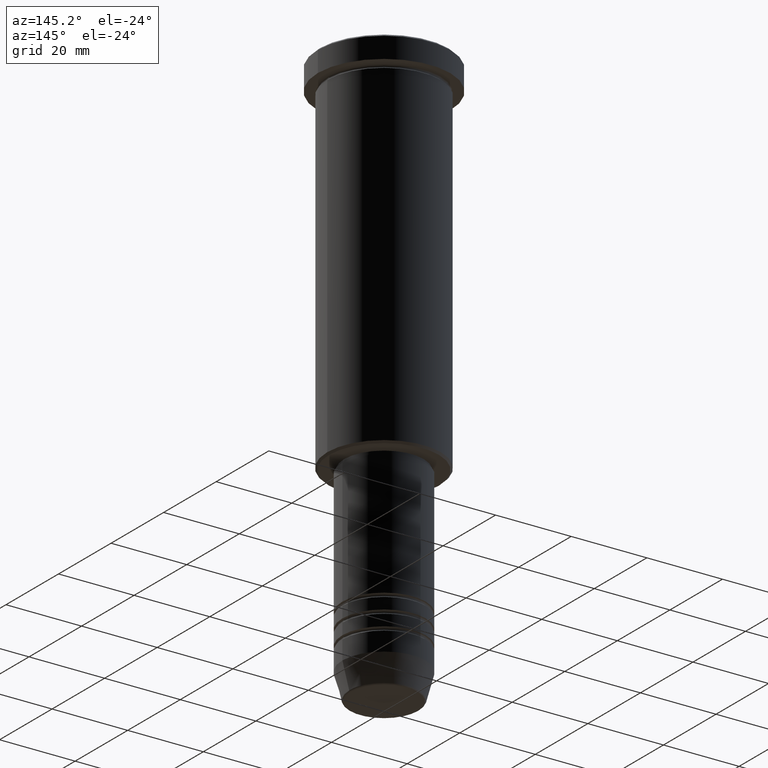
[diagram: clean part render]
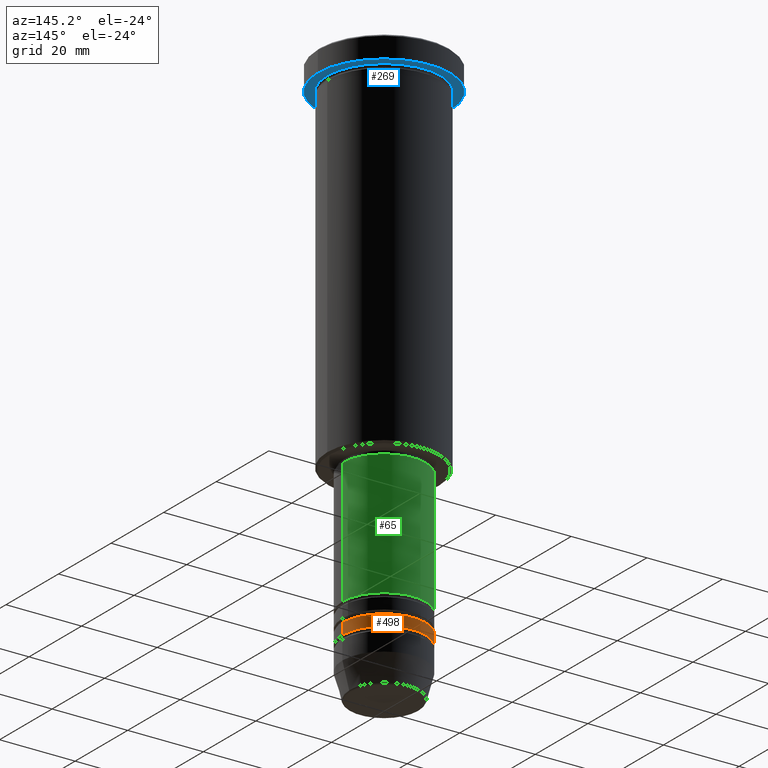
[diagram: same view with three faces highlighted in distinct colors, each labeled with its STEP entity id]
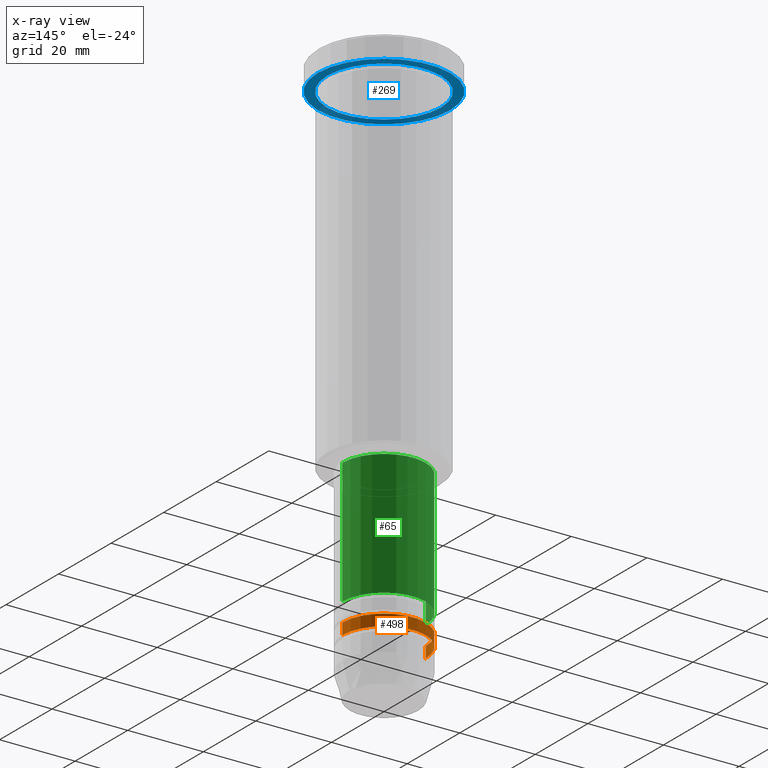
[diagram: x-ray of the same camera — body ghosted, the three highlighted faces saturated]
A machine part, auxiliary view with three faces highlighted in distinct colors.
The next image is the same camera in x-ray (body ghosted, the three faces saturated) — at least one of them is partly hidden behind the body in this view.
Their STEP definitions:

[orange] entity #498 — the highlighted cylindrical surface (partial cylindrical patch) has radius 11 mm, axis along (-0, -0, 1).
#5 = CARTESIAN_POINT ( 'NONE',  ( 0.000000000000000000, 0.000000000000000000, -137.9999999999998863 ) ) ;
#6 = DIRECTION ( 'NONE',  ( -0.000000000000000000, -0.000000000000000000, 1.000000000000000000 ) ) ;
#17 = DIRECTION ( 'NONE',  ( -0.000000000000000000, -0.000000000000000000, 1.000000000000000000 ) ) ;
#20 = LINE ( 'NONE', #281, #93 ) ;
#46 = EDGE_CURVE ( 'NONE', #70, #321, #1047, .T. ) ;
#70 = VERTEX_POINT ( 'NONE', #657 ) ;
#73 = AXIS2_PLACEMENT_3D ( 'NONE', #5, #849, #185 ) ;
#93 = VECTOR ( 'NONE', #6, 1000.000000000000000 ) ;
#106 = CARTESIAN_POINT ( 'NONE',  ( -11.00000000000000000, 1.347111479062088405E-15, -134.9999999999998863 ) ) ;
#132 = EDGE_CURVE ( 'NONE', #458, #467, #501, .T. ) ;
#147 = EDGE_CURVE ( 'NONE', #321, #467, #1135, .T. ) ;
#185 = DIRECTION ( 'NONE',  ( 1.000000000000000000, 0.000000000000000000, 0.000000000000000000 ) ) ;
#281 = CARTESIAN_POINT ( 'NONE',  ( 11.00000000000000000, 0.000000000000000000, 0.000000000000000000 ) ) ;
#309 = EDGE_LOOP ( 'NONE', ( #1063, #1072, #1061, #320 ) ) ;
#320 = ORIENTED_EDGE ( 'NONE', *, *, #341, .F. ) ;
#321 = VERTEX_POINT ( 'NONE', #1178 ) ;
#334 = AXIS2_PLACEMENT_3D ( 'NONE', #939, #17, #651 ) ;
#341 = EDGE_CURVE ( 'NONE', #70, #458, #20, .T. ) ;
#458 = VERTEX_POINT ( 'NONE', #572 ) ;
#467 = VERTEX_POINT ( 'NONE', #106 ) ;
#480 = FACE_OUTER_BOUND ( 'NONE', #309, .T. ) ;
#498 = ADVANCED_FACE ( 'NONE', ( #480 ), #751, .T. ) ;
#501 = CIRCLE ( 'NONE', #1131, 11.00000000000000000 ) ;
#509 = DIRECTION ( 'NONE',  ( 1.000000000000000000, 0.000000000000000000, 0.000000000000000000 ) ) ;
#518 = CARTESIAN_POINT ( 'NONE',  ( 0.000000000000000000, 0.000000000000000000, -134.9999999999998863 ) ) ;
#572 = CARTESIAN_POINT ( 'NONE',  ( 11.00000000000000000, 0.000000000000000000, -134.9999999999998863 ) ) ;
#651 = DIRECTION ( 'NONE',  ( 1.000000000000000000, 0.000000000000000000, 0.000000000000000000 ) ) ;
#657 = CARTESIAN_POINT ( 'NONE',  ( 11.00000000000000000, 0.000000000000000000, -137.9999999999998863 ) ) ;
#664 = VECTOR ( 'NONE', #1054, 1000.000000000000000 ) ;
#751 = CYLINDRICAL_SURFACE ( 'NONE', #334, 11.00000000000000000 ) ;
#849 = DIRECTION ( 'NONE',  ( -0.000000000000000000, -0.000000000000000000, 1.000000000000000000 ) ) ;
#939 = CARTESIAN_POINT ( 'NONE',  ( 0.000000000000000000, 0.000000000000000000, 0.000000000000000000 ) ) ;
#967 = CARTESIAN_POINT ( 'NONE',  ( -11.00000000000000000, 1.347111479062088405E-15, 0.000000000000000000 ) ) ;
#1033 = DIRECTION ( 'NONE',  ( -0.000000000000000000, -0.000000000000000000, 1.000000000000000000 ) ) ;
#1047 = CIRCLE ( 'NONE', #73, 11.00000000000000000 ) ;
#1054 = DIRECTION ( 'NONE',  ( -0.000000000000000000, -0.000000000000000000, 1.000000000000000000 ) ) ;
#1061 = ORIENTED_EDGE ( 'NONE', *, *, #132, .F. ) ;
#1063 = ORIENTED_EDGE ( 'NONE', *, *, #46, .T. ) ;
#1072 = ORIENTED_EDGE ( 'NONE', *, *, #147, .T. ) ;
#1131 = AXIS2_PLACEMENT_3D ( 'NONE', #518, #1033, #509 ) ;
#1135 = LINE ( 'NONE', #967, #664 ) ;
#1178 = CARTESIAN_POINT ( 'NONE',  ( -11.00000000000000000, 1.347111479062088405E-15, -137.9999999999998863 ) ) ;

[blue] entity #269 — the highlighted planar face has unit normal (0, 0, -1).
#43 = CARTESIAN_POINT ( 'NONE',  ( 0.000000000000000000, 0.000000000000000000, -5.999999999999995559 ) ) ;
#57 = CIRCLE ( 'NONE', #1134, 15.00000000000000000 ) ;
#71 = DIRECTION ( 'NONE',  ( -1.000000000000000000, 0.000000000000000000, -0.000000000000000000 ) ) ;
#127 = VERTEX_POINT ( 'NONE', #679 ) ;
#163 = FACE_OUTER_BOUND ( 'NONE', #426, .T. ) ;
#175 = DIRECTION ( 'NONE',  ( 1.000000000000000000, 0.000000000000000000, 0.000000000000000000 ) ) ;
#192 = AXIS2_PLACEMENT_3D ( 'NONE', #815, #1087, #721 ) ;
#232 = DIRECTION ( 'NONE',  ( -0.000000000000000000, -0.000000000000000000, 1.000000000000000000 ) ) ;
#269 = ADVANCED_FACE ( 'NONE', ( #452, #163 ), #807, .T. ) ;
#274 = ORIENTED_EDGE ( 'NONE', *, *, #649, .T. ) ;
#297 = CARTESIAN_POINT ( 'NONE',  ( 0.000000000000000000, 0.000000000000000000, -5.999999999999995559 ) ) ;
#315 = CIRCLE ( 'NONE', #729, 15.00000000000000000 ) ;
#407 = VERTEX_POINT ( 'NONE', #648 ) ;
#426 = EDGE_LOOP ( 'NONE', ( #446, #828 ) ) ;
#446 = ORIENTED_EDGE ( 'NONE', *, *, #1036, .F. ) ;
#452 = FACE_BOUND ( 'NONE', #510, .T. ) ;
#510 = EDGE_LOOP ( 'NONE', ( #973, #274 ) ) ;
#544 = CARTESIAN_POINT ( 'NONE',  ( 0.000000000000000000, 0.000000000000000000, -5.999999999999995559 ) ) ;
#615 = CARTESIAN_POINT ( 'NONE',  ( 0.000000000000000000, 17.50000000000000000, -5.999999999999995559 ) ) ;
#616 = AXIS2_PLACEMENT_3D ( 'NONE', #544, #1062, #175 ) ;
#638 = EDGE_CURVE ( 'NONE', #407, #813, #315, .T. ) ;
#648 = CARTESIAN_POINT ( 'NONE',  ( -15.00000000000000000, 0.000000000000000000, -5.999999999999994671 ) ) ;
#649 = EDGE_CURVE ( 'NONE', #813, #407, #57, .T. ) ;
#679 = CARTESIAN_POINT ( 'NONE',  ( 17.50000000000000000, 0.000000000000000000, -5.999999999999995559 ) ) ;
#694 = CARTESIAN_POINT ( 'NONE',  ( -17.50000000000000000, 2.143131898507868248E-15, -5.999999999999995559 ) ) ;
#721 = DIRECTION ( 'NONE',  ( 1.000000000000000000, 0.000000000000000000, 0.000000000000000000 ) ) ;
#729 = AXIS2_PLACEMENT_3D ( 'NONE', #43, #232, #875 ) ;
#768 = DIRECTION ( 'NONE',  ( -1.000000000000000000, 0.000000000000000000, 0.000000000000000000 ) ) ;
#784 = CIRCLE ( 'NONE', #616, 17.50000000000000000 ) ;
#807 = PLANE ( 'NONE',  #1153 ) ;
#813 = VERTEX_POINT ( 'NONE', #1182 ) ;
#815 = CARTESIAN_POINT ( 'NONE',  ( 0.000000000000000000, 0.000000000000000000, -5.999999999999995559 ) ) ;
#828 = ORIENTED_EDGE ( 'NONE', *, *, #862, .F. ) ;
#862 = EDGE_CURVE ( 'NONE', #1176, #127, #784, .T. ) ;
#875 = DIRECTION ( 'NONE',  ( -1.000000000000000000, 0.000000000000000000, 0.000000000000000000 ) ) ;
#973 = ORIENTED_EDGE ( 'NONE', *, *, #638, .T. ) ;
#978 = DIRECTION ( 'NONE',  ( 0.000000000000000000, 0.000000000000000000, -1.000000000000000000 ) ) ;
#1032 = CIRCLE ( 'NONE', #192, 17.50000000000000000 ) ;
#1036 = EDGE_CURVE ( 'NONE', #127, #1176, #1032, .T. ) ;
#1039 = DIRECTION ( 'NONE',  ( -0.000000000000000000, -0.000000000000000000, 1.000000000000000000 ) ) ;
#1062 = DIRECTION ( 'NONE',  ( -0.000000000000000000, -0.000000000000000000, 1.000000000000000000 ) ) ;
#1087 = DIRECTION ( 'NONE',  ( -0.000000000000000000, -0.000000000000000000, 1.000000000000000000 ) ) ;
#1134 = AXIS2_PLACEMENT_3D ( 'NONE', #297, #1039, #768 ) ;
#1153 = AXIS2_PLACEMENT_3D ( 'NONE', #615, #978, #71 ) ;
#1176 = VERTEX_POINT ( 'NONE', #694 ) ;
#1182 = CARTESIAN_POINT ( 'NONE',  ( 15.00000000000000000, 1.836970198721029589E-15, -5.999999999999994671 ) ) ;

[green] entity #65 — the highlighted cylindrical surface (partial cylindrical patch) has radius 11 mm, axis along (-0, -0, 1).
#25 = ORIENTED_EDGE ( 'NONE', *, *, #80, .T. ) ;
#29 = CARTESIAN_POINT ( 'NONE',  ( 11.00000000000000000, 0.000000000000000000, 0.000000000000000000 ) ) ;
#65 = ADVANCED_FACE ( 'NONE', ( #383 ), #289, .T. ) ;
#80 = EDGE_CURVE ( 'NONE', #537, #170, #896, .T. ) ;
#87 = CARTESIAN_POINT ( 'NONE',  ( 11.00000000000000000, 0.000000000000000000, -97.00000000000000000 ) ) ;
#114 = DIRECTION ( 'NONE',  ( 1.000000000000000000, 0.000000000000000000, 0.000000000000000000 ) ) ;
#117 = ORIENTED_EDGE ( 'NONE', *, *, #912, .T. ) ;
#170 = VERTEX_POINT ( 'NONE', #406 ) ;
#200 = EDGE_LOOP ( 'NONE', ( #25, #117, #227, #848 ) ) ;
#204 = CARTESIAN_POINT ( 'NONE',  ( 0.000000000000000000, 0.000000000000000000, -129.9999999999998863 ) ) ;
#227 = ORIENTED_EDGE ( 'NONE', *, *, #587, .F. ) ;
#289 = CYLINDRICAL_SURFACE ( 'NONE', #1027, 11.00000000000000000 ) ;
#327 = DIRECTION ( 'NONE',  ( -0.000000000000000000, -0.000000000000000000, 1.000000000000000000 ) ) ;
#333 = AXIS2_PLACEMENT_3D ( 'NONE', #204, #573, #1114 ) ;
#360 = CIRCLE ( 'NONE', #581, 11.00000000000000000 ) ;
#379 = DIRECTION ( 'NONE',  ( 1.000000000000000000, 0.000000000000000000, 0.000000000000000000 ) ) ;
#383 = FACE_OUTER_BOUND ( 'NONE', #200, .T. ) ;
#406 = CARTESIAN_POINT ( 'NONE',  ( -11.00000000000000000, 1.347111479062088405E-15, -129.9999999999998863 ) ) ;
#477 = DIRECTION ( 'NONE',  ( -0.000000000000000000, -0.000000000000000000, 1.000000000000000000 ) ) ;
#496 = CARTESIAN_POINT ( 'NONE',  ( 11.00000000000000000, 0.000000000000000000, -129.9999999999998863 ) ) ;
#537 = VERTEX_POINT ( 'NONE', #496 ) ;
#573 = DIRECTION ( 'NONE',  ( -0.000000000000000000, -0.000000000000000000, 1.000000000000000000 ) ) ;
#577 = DIRECTION ( 'NONE',  ( -0.000000000000000000, -0.000000000000000000, 1.000000000000000000 ) ) ;
#581 = AXIS2_PLACEMENT_3D ( 'NONE', #932, #577, #114 ) ;
#586 = LINE ( 'NONE', #29, #690 ) ;
#587 = EDGE_CURVE ( 'NONE', #1095, #959, #360, .T. ) ;
#614 = EDGE_CURVE ( 'NONE', #537, #1095, #586, .T. ) ;
#628 = CARTESIAN_POINT ( 'NONE',  ( -11.00000000000000000, 1.347111479062088405E-15, -97.00000000000000000 ) ) ;
#690 = VECTOR ( 'NONE', #760, 1000.000000000000000 ) ;
#760 = DIRECTION ( 'NONE',  ( -0.000000000000000000, -0.000000000000000000, 1.000000000000000000 ) ) ;
#794 = LINE ( 'NONE', #1143, #843 ) ;
#843 = VECTOR ( 'NONE', #327, 1000.000000000000000 ) ;
#848 = ORIENTED_EDGE ( 'NONE', *, *, #614, .F. ) ;
#896 = CIRCLE ( 'NONE', #333, 11.00000000000000000 ) ;
#912 = EDGE_CURVE ( 'NONE', #170, #959, #794, .T. ) ;
#932 = CARTESIAN_POINT ( 'NONE',  ( 0.000000000000000000, 0.000000000000000000, -97.00000000000000000 ) ) ;
#959 = VERTEX_POINT ( 'NONE', #628 ) ;
#1027 = AXIS2_PLACEMENT_3D ( 'NONE', #1100, #477, #379 ) ;
#1095 = VERTEX_POINT ( 'NONE', #87 ) ;
#1100 = CARTESIAN_POINT ( 'NONE',  ( 0.000000000000000000, 0.000000000000000000, 0.000000000000000000 ) ) ;
#1114 = DIRECTION ( 'NONE',  ( 1.000000000000000000, 0.000000000000000000, 0.000000000000000000 ) ) ;
#1143 = CARTESIAN_POINT ( 'NONE',  ( -11.00000000000000000, 1.347111479062088405E-15, 0.000000000000000000 ) ) ;